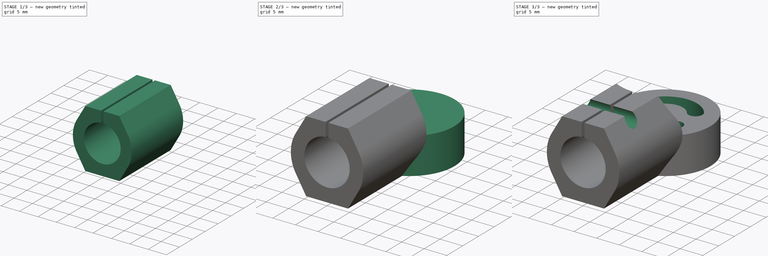
[diagram: build sequence overview — one tinted view per stage of 3, left to right]
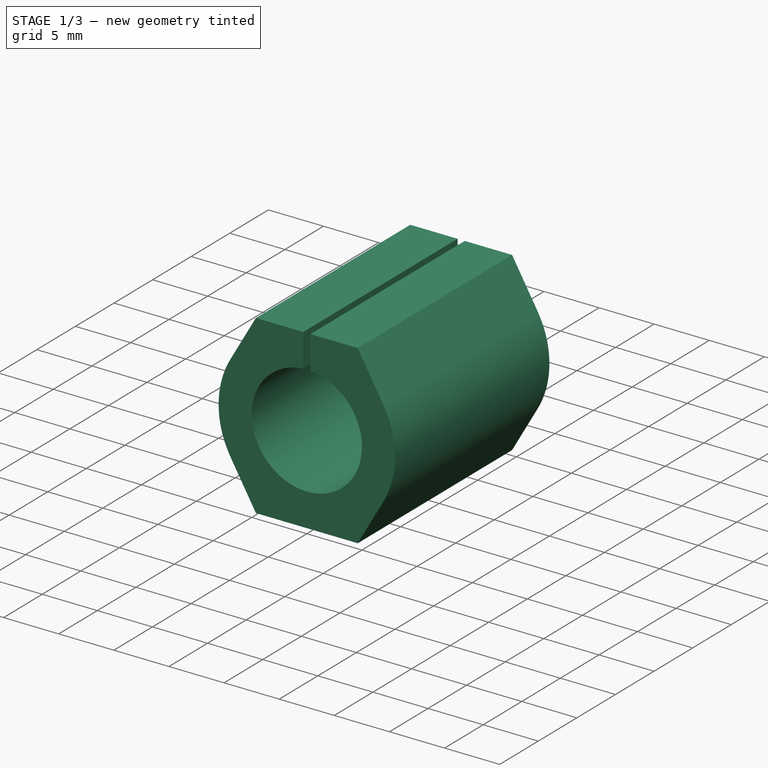
[diagram: stage 1 of 3 — iso view after this stage's code; geometry added in this stage tinted green]
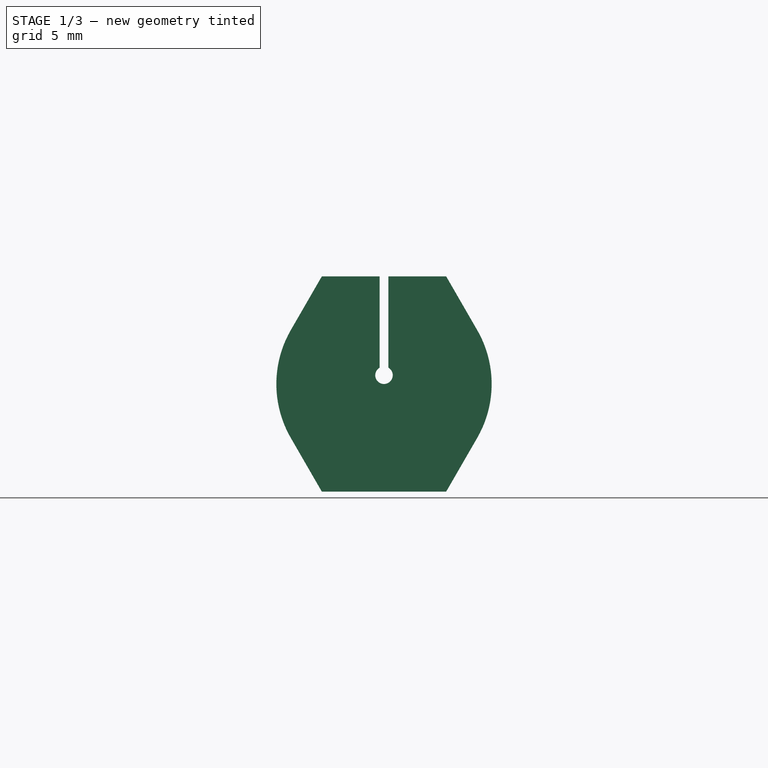
[diagram: stage 1 of 3 — front view after this stage's code; geometry added in this stage tinted green]
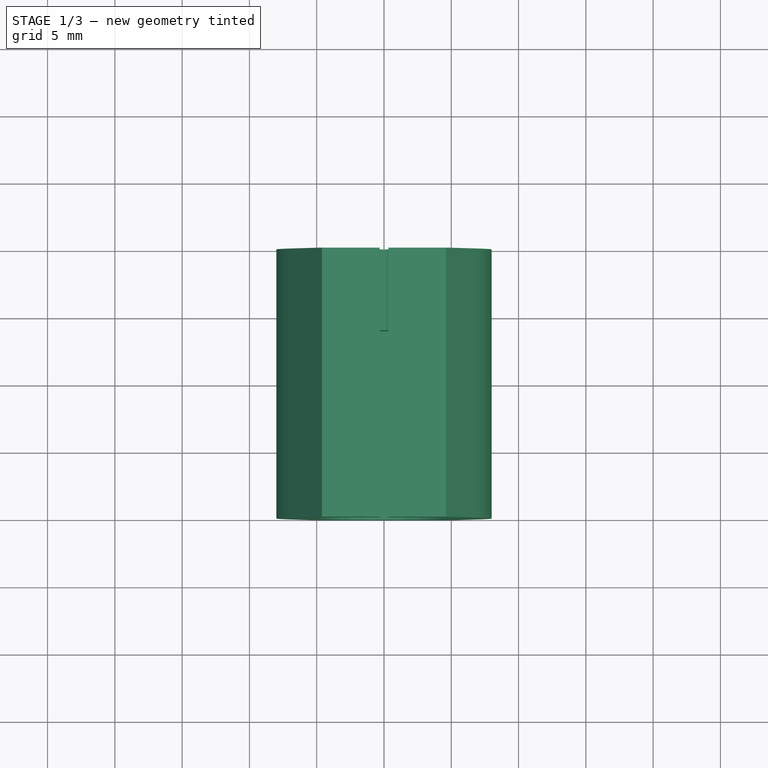
[diagram: stage 1 of 3 — top view after this stage's code; geometry added in this stage tinted green]
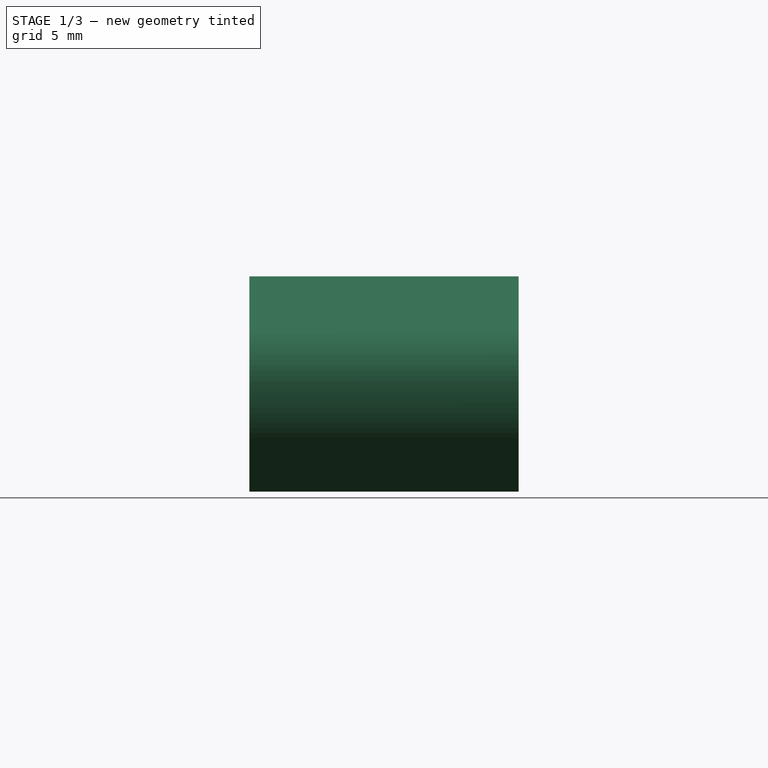
[diagram: stage 1 of 3 — right view after this stage's code; geometry added in this stage tinted green]
FCSTD DOCUMENT  (FreeCAD 0.16RUnknown)
Label: joint-i.002
License: All rights reserved
LicenseURL: http://en.wikipedia.org/wiki/All_rights_reserved
objects: Sketcher::SketchObject×7, PartDesign::Pocket×5, Part::Extrusion×2, Part::MultiFuse×1
note: 20 computed .brp shape members not serialized (recipe doc carries the construction recipe); baked Part::Feature solids carry a one-line shape summary decoded from their .brp

FEATURE [Sketcher::SketchObject] Sketch
  Placement = pos=(0,0,0) rot=(1,0,0;1.5708rad)
  sketch-geometry (16):
    g0: Circle [constr] CenterX=0 CenterY=0 CenterZ=0 NormalX=0 NormalY=0 NormalZ=1 Radius=5
    g1: LineSegment [constr] StartX=5 StartY=0 StartZ=0 EndX=8 EndY=0 EndZ=0
    g2: LineSegment StartX=-4.6188 StartY=8 StartZ=0 EndX=4.61881 EndY=8 EndZ=0
    g3: LineSegment StartX=-4.61881 StartY=-8 StartZ=0 EndX=4.6188 EndY=-8 EndZ=0
    g4: LineSegment StartX=-6.92821 StartY=-3.99999 StartZ=0 EndX=-4.61881 EndY=-8 EndZ=0
    g5: LineSegment StartX=4.6188 StartY=-8 StartZ=0 EndX=6.9282 EndY=-4 EndZ=0
    g6: LineSegment StartX=-4.6188 StartY=8 StartZ=0 EndX=-6.9282 EndY=4 EndZ=0
    g7: LineSegment StartX=4.61881 StartY=8 StartZ=0 EndX=6.92821 EndY=3.99999 EndZ=0
    g8: LineSegment [constr] StartX=0 StartY=0 StartZ=0 EndX=4.6188 EndY=-8 EndZ=0
    g9: LineSegment [constr] StartX=-4.61881 StartY=-8 StartZ=0 EndX=0 EndY=0 EndZ=0
    g10: ArcOfCircle CenterX=0 CenterY=0 CenterZ=0 NormalX=0 NormalY=0 NormalZ=1 Radius=8 StartAngle=2.61799 EndAngle=3.66519
    g11: ArcOfCircle CenterX=0 CenterY=0 CenterZ=0 NormalX=0 NormalY=0 NormalZ=1 Radius=8 StartAngle=5.75959 EndAngle=6.80678
    g12: ArcOfCircle [constr] CenterX=0 CenterY=0 CenterZ=0 NormalX=0 NormalY=0 NormalZ=1 Radius=8 StartAngle=0.523598 EndAngle=2.61799
    g13: ArcOfCircle [constr] CenterX=0 CenterY=0 CenterZ=0 NormalX=0 NormalY=0 NormalZ=1 Radius=8 StartAngle=3.66519 EndAngle=5.75959
    g14: LineSegment [constr] StartX=-4.6188 StartY=8 StartZ=0 EndX=0 EndY=0 EndZ=0
    g15: LineSegment [constr] StartX=0 StartY=0 StartZ=0 EndX=4.61881 EndY=8 EndZ=0
  constraints (43):
    c: Coincident(g0,g-1)
    c: Radius(g0) = 5
    c: Horizontal(g1)
    c: PointOnObject(g1,g0)
    c: PointOnObject(g1,g-1)
    c: DistanceX(g1,g1) = 3
    c: Horizontal(g2)
    c: Horizontal(g3)
    c: Coincident(g2,g6)
    c: Coincident(g2,g7)
    c: Coincident(g3,g4)
    c: Coincident(g3,g5)
    c: Coincident(g3,g8)
    c: Coincident(g3,g9)
    c: Coincident(g0,g9)
    c: Angle(g-1,g5) = 1.0472
    c: Tangent(g3,g13)
    c: Tangent(g6,g10)
    c: Tangent(g4,g10)
    c: Tangent(g7,g11)
    c: PointOnObject(g1,g11)
    c: Coincident(g5,g11)
    c: Coincident(g5,g13)
    c: Coincident(g4,g10)
    c: Coincident(g4,g13)
    c: Coincident(g6,g10)
    c: Coincident(g6,g12)
    c: Coincident(g7,g11)
    c: Coincident(g7,g12)
    c: Coincident(g0,g10)
    c: Coincident(g0,g11)
    c: Coincident(g0,g13)
    c: Tangent(g5,g11)
    c: Coincident(g0,g8)
    c: Coincident(g0,g12)
    c: Tangent(g2,g12)
    c: Equal(g6,g7)
    c: Coincident(g14,g15)
    c: Coincident(g2,g15)
    c: Coincident(g2,g14)
    c: Coincident(g0,g14)
    c: Parallel(g14,g8)
    c: Parallel(g9,g15)
FEATURE [Part::Extrusion] Extrude
  Base = -> Sketch
  Dir = (0,20,0)
  Solid = true
FEATURE [Sketcher::SketchObject] Sketch001
  ExternalGeometry = -> [Extrude]
  Placement = pos=(0,0,0) rot=(1,0,0;1.5708rad)
  Support = -> Extrude [Face9]
  sketch-geometry (2):
    g0: Circle CenterX=0 CenterY=0 CenterZ=0 NormalX=0 NormalY=0 NormalZ=1 Radius=5
    g1: LineSegment [constr] StartX=5 StartY=0 StartZ=0 EndX=8 EndY=0 EndZ=0
  constraints (6):
    c: Coincident(g0,g-1)
    c: Horizontal(g1)
    c: PointOnObject(g1,g-3)
    c: PointOnObject(g1,g0)
    c: PointOnObject(g1,g-1)
    c: DistanceX(g1,g1) = 3
FEATURE [PartDesign::Pocket] Pocket
  Length = 14
  Sketch = -> Sketch001
  Type = 0
FEATURE [Sketcher::SketchObject] Sketch002
  ExternalGeometry = -> [Pocket]
  Placement = pos=(0,20,0) rot=(0,0.707107,0.707107;3.14159rad)
  Support = -> Pocket [Face5]
  sketch-geometry (8):
    g0: ArcOfCircle CenterX=0 CenterY=0.65 CenterZ=0 NormalX=0 NormalY=0 NormalZ=1 Radius=0.65 StartAngle=2.0944 EndAngle=7.33038
    g1: LineSegment StartX=-0.325 StartY=8 StartZ=0 EndX=-0.325 EndY=1.21292 EndZ=0
    g2: LineSegment StartX=0.325 StartY=8 StartZ=0 EndX=0.325 EndY=1.21292 EndZ=0
    g3: LineSegment [constr] StartX=-0.325 StartY=1.21292 StartZ=0 EndX=0 EndY=0.65 EndZ=0
    g4: LineSegment [constr] StartX=0 StartY=0.65 StartZ=0 EndX=0.325 EndY=1.21292 EndZ=0
    g5: LineSegment [constr] StartX=-0.325 StartY=1.21292 StartZ=0 EndX=0.325 EndY=1.21292 EndZ=0
    g6: LineSegment StartX=-0.325 StartY=8 StartZ=0 EndX=0.325 EndY=8 EndZ=0
    g7: LineSegment [constr] StartX=0 StartY=0.65 StartZ=0 EndX=0 EndY=0 EndZ=0
  constraints (22):
    c: Vertical(g1)
    c: Vertical(g2)
    c: PointOnObject(g2,g-3)
    c: PointOnObject(g1,g-3)
    c: Coincident(g0,g2)
    c: Coincident(g0,g1)
    c: Coincident(g3,g4)
    c: Coincident(g0,g3)
    c: Coincident(g0,g4)
    c: Coincident(g0,g3)
    c: Horizontal(g5)
    c: Coincident(g0,g5)
    c: Coincident(g0,g5)
    c: Angle(g4,g3) = 1.0472
    c: Horizontal(g6)
    c: DistanceX(g6,g6) = 0.65
    c: Coincident(g2,g6)
    c: Coincident(g1,g6)
    c: Vertical(g7)
    c: Coincident(g0,g7)
    c: PointOnObject(g7,g0)
    c: Coincident(g7,g-1)
FEATURE [PartDesign::Pocket] Pocket001
  Length = 5
  Sketch = -> Sketch002
  Type = 1
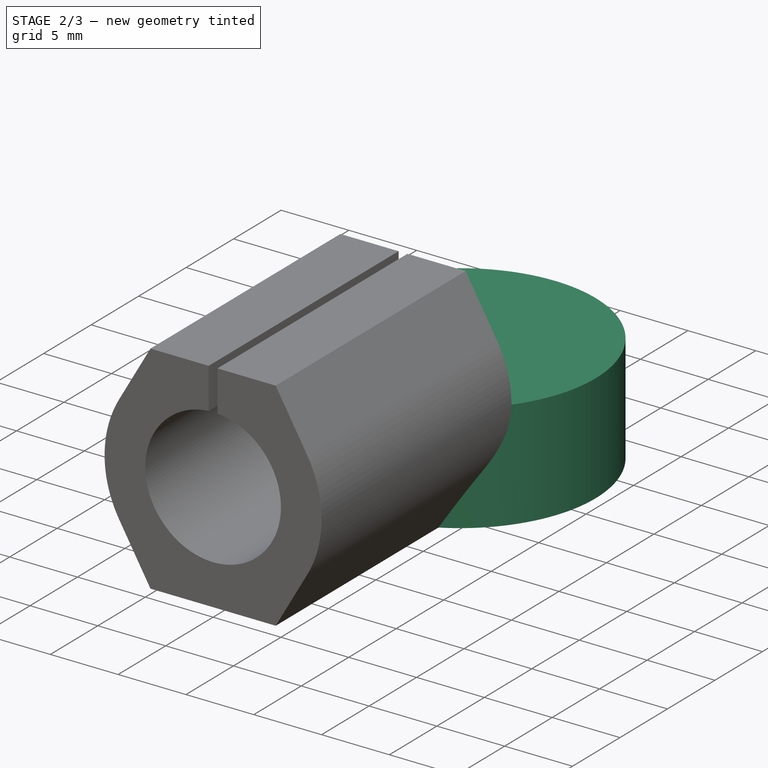
[diagram: stage 2 of 3 — iso view after this stage's code; geometry added in this stage tinted green]
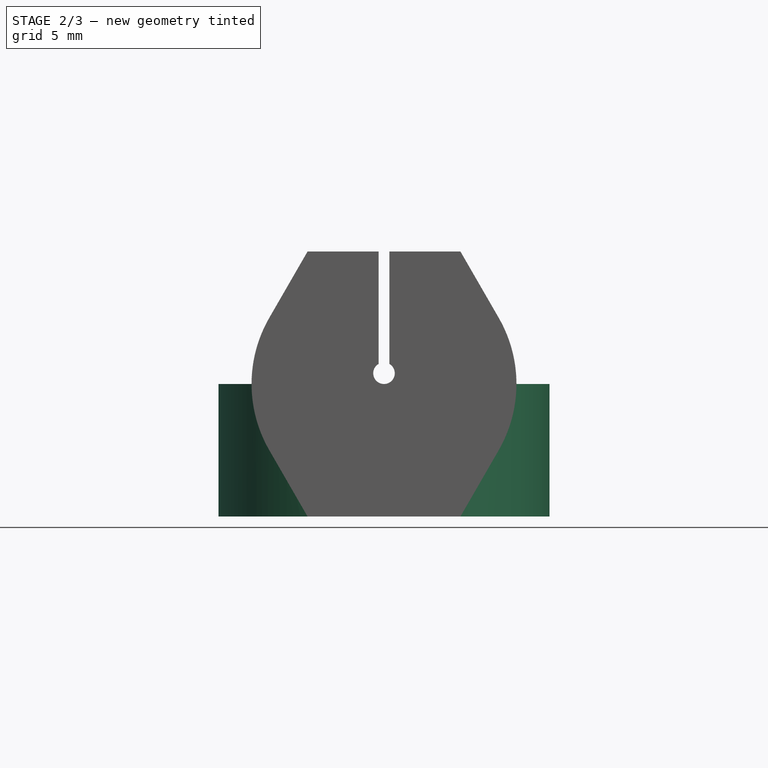
[diagram: stage 2 of 3 — front view after this stage's code; geometry added in this stage tinted green]
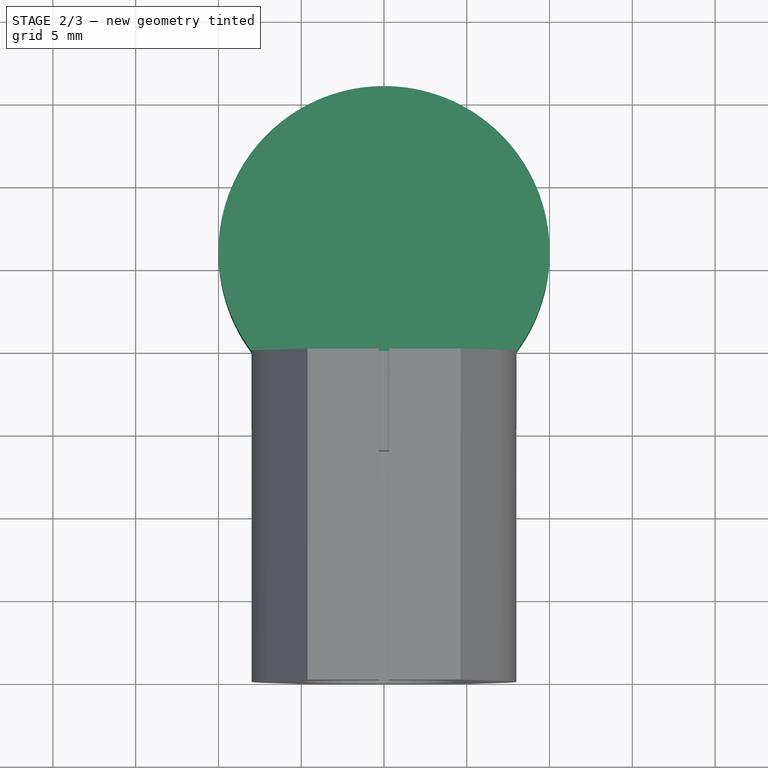
[diagram: stage 2 of 3 — top view after this stage's code; geometry added in this stage tinted green]
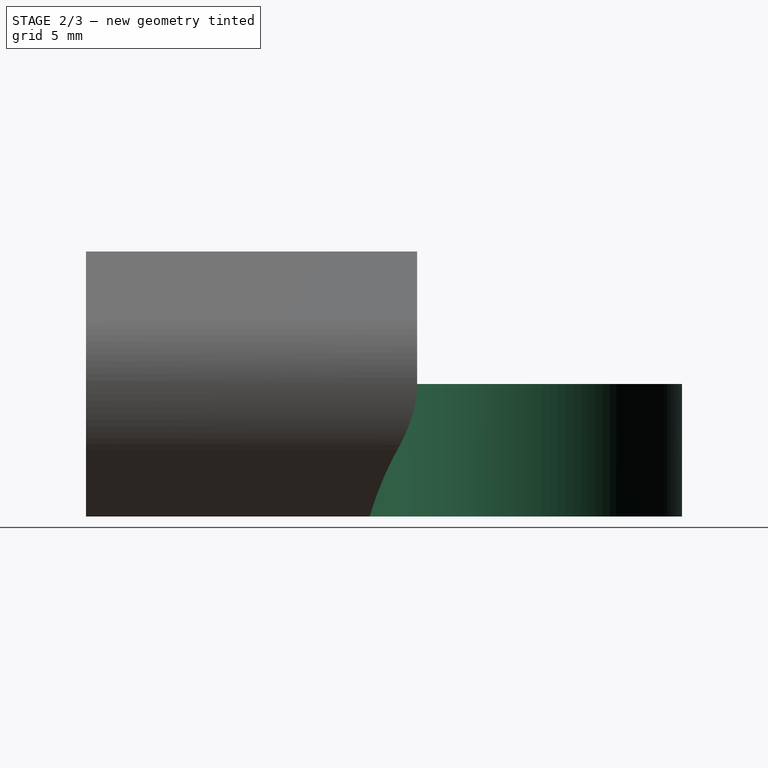
[diagram: stage 2 of 3 — right view after this stage's code; geometry added in this stage tinted green]
FEATURE [Sketcher::SketchObject] Sketch003
  ExternalGeometry = -> [Pocket001]
  Placement = pos=(0,0,-8) rot=(1,0,0;3.14159rad)
  Support = -> Pocket001 [Face8]
  sketch-geometry (3):
    g0: Circle CenterX=0 CenterY=-26 CenterZ=0 NormalX=0 NormalY=0 NormalZ=1 Radius=10
    g1: LineSegment [constr] StartX=-8 StartY=-20 StartZ=0 EndX=0 EndY=-20 EndZ=0
    g2: LineSegment [constr] StartX=0 StartY=-20 StartZ=0 EndX=8 EndY=-20 EndZ=0
  constraints (10):
    c: PointOnObject(g0,g-2)
    c: Horizontal(g1)
    c: Horizontal(g2)
    c: PointOnObject(g1,g0)
    c: PointOnObject(g2,g0)
    c: Radius(g0) = 10
    c: Coincident(g1,g2)
    c: Equal(g2,g1)
    c: PointOnObject(g1,g-3)
    c: DistanceX(g1,g2) = 16
FEATURE [Part::Extrusion] Extrude001
  Base = -> Sketch003
  Dir = (0,0,8)
  Solid = true
FEATURE [Part::MultiFuse] Fusion
  Shapes = -> [Extrude001,Pocket001]
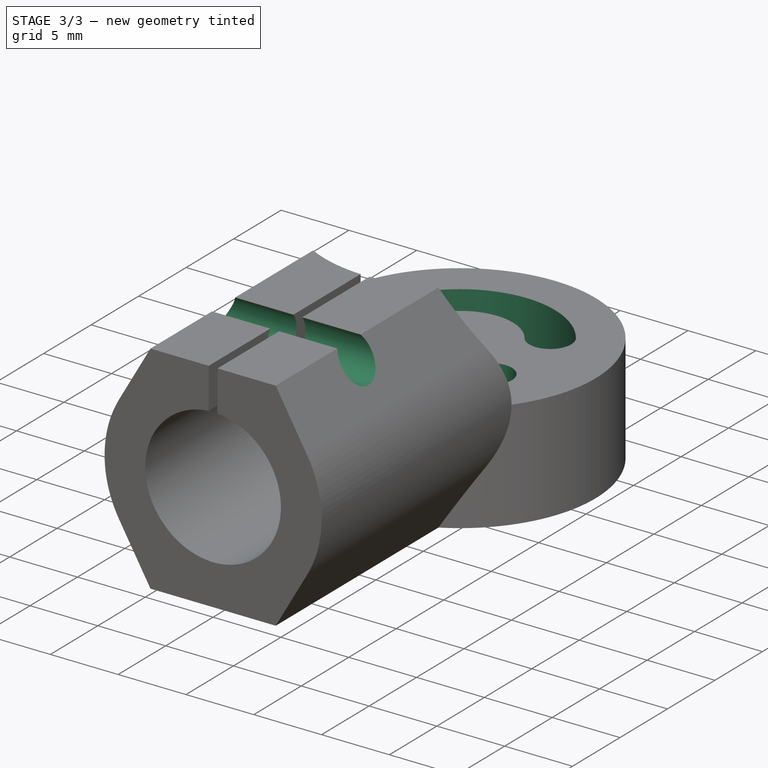
[diagram: stage 3 of 3 — iso view after this stage's code; geometry added in this stage tinted green]
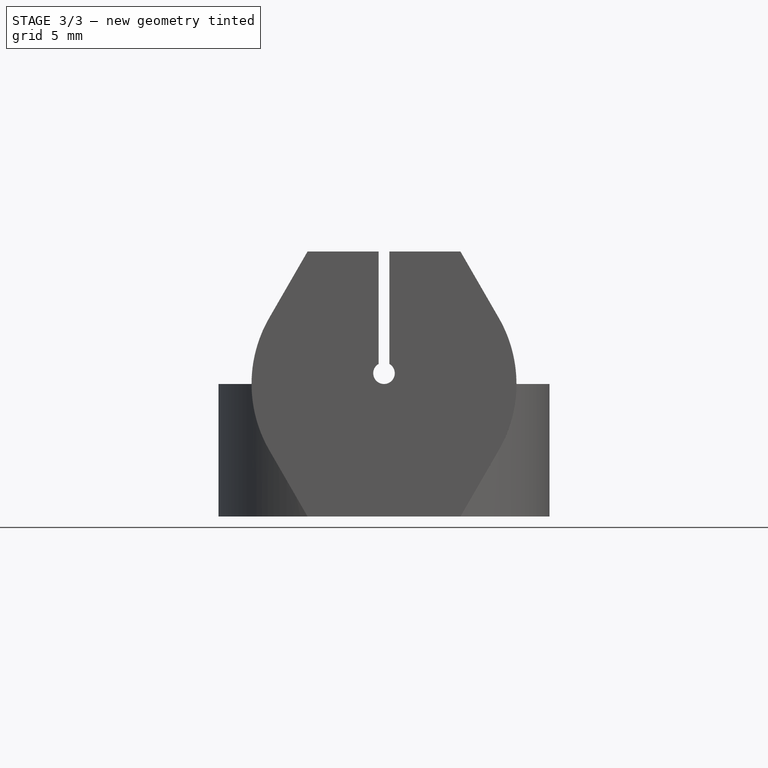
[diagram: stage 3 of 3 — front view after this stage's code; geometry added in this stage tinted green]
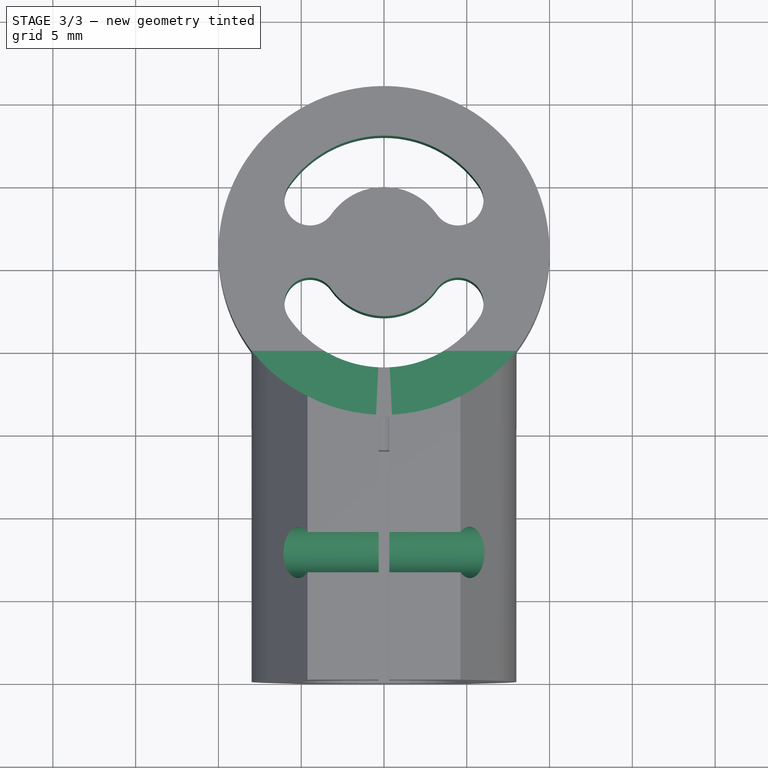
[diagram: stage 3 of 3 — top view after this stage's code; geometry added in this stage tinted green]
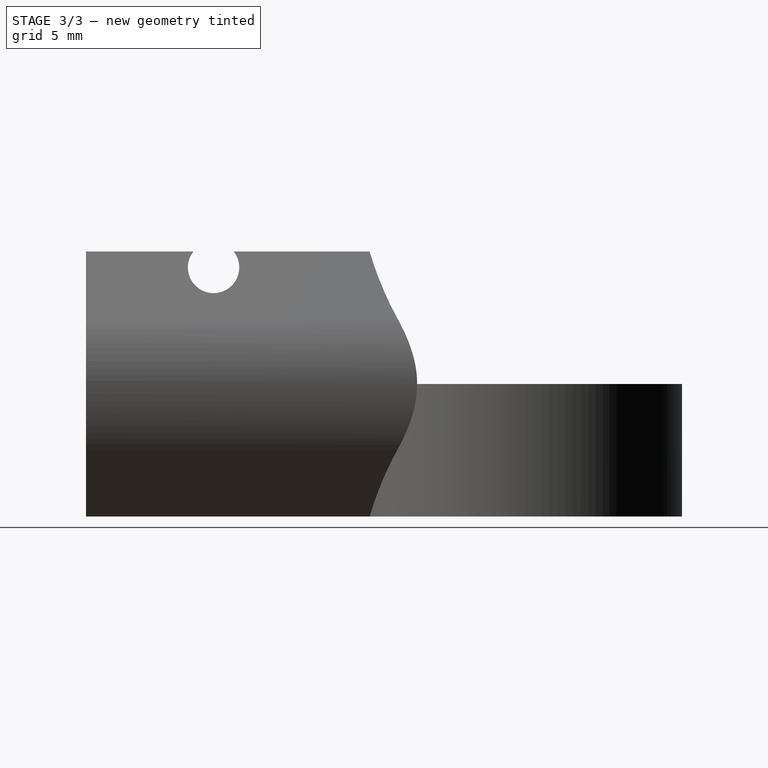
[diagram: stage 3 of 3 — right view after this stage's code; geometry added in this stage tinted green]
FEATURE [Sketcher::SketchObject] Sketch004
  ExternalGeometry = -> [Fusion]
  Support = -> Fusion [Face17]
  sketch-geometry (1):
    g0: Circle CenterX=0 CenterY=26 CenterZ=0 NormalX=0 NormalY=0 NormalZ=1 Radius=10
  constraints (2):
    c: Coincident(g0,g-3)
    c: Equal(g0,g-3)
FEATURE [PartDesign::Pocket] Pocket002
  Length = 5
  Reversed = true
  Sketch = -> Sketch004
  Type = 1
FEATURE [Sketcher::SketchObject] Sketch005
  ExternalGeometry = -> [Pocket002]
  Support = -> Pocket002 [Face23]
  sketch-geometry (22):
    g0: ArcOfCircle [constr] CenterX=0 CenterY=26 CenterZ=0 NormalX=0 NormalY=0 NormalZ=1 Radius=3.9 StartAngle=2.53073 EndAngle=3.75246
    g1: ArcOfCircle [constr] CenterX=0 CenterY=26 CenterZ=0 NormalX=0 NormalY=0 NormalZ=1 Radius=7 StartAngle=2.53073 EndAngle=3.75246
    g2: ArcOfCircle [constr] CenterX=0 CenterY=26 CenterZ=0 NormalX=0 NormalY=0 NormalZ=1 Radius=3.9 StartAngle=5.67232 EndAngle=6.89405
    g3: ArcOfCircle [constr] CenterX=0 CenterY=26 CenterZ=0 NormalX=0 NormalY=0 NormalZ=1 Radius=7 StartAngle=5.67232 EndAngle=6.89405
    g4: ArcOfCircle CenterX=0 CenterY=26 CenterZ=0 NormalX=0 NormalY=0 NormalZ=1 Radius=3.9 StartAngle=0.610865 EndAngle=2.53073
    g5: ArcOfCircle CenterX=0 CenterY=26 CenterZ=0 NormalX=0 NormalY=0 NormalZ=1 Radius=7 StartAngle=0.610865 EndAngle=2.53073
    g6: ArcOfCircle CenterX=0 CenterY=26 CenterZ=0 NormalX=0 NormalY=0 NormalZ=1 Radius=3.9 StartAngle=3.75246 EndAngle=5.67232
    g7: ArcOfCircle CenterX=0 CenterY=26 CenterZ=0 NormalX=0 NormalY=0 NormalZ=1 Radius=7 StartAngle=3.75246 EndAngle=5.67232
    g8: LineSegment [constr] StartX=8.19152 StartY=31.7358 StartZ=0 EndX=5.73406 EndY=30.015 EndZ=0
    g9: LineSegment [constr] StartX=5.73406 StartY=30.015 StartZ=0 EndX=3.19469 EndY=28.2369 EndZ=0
    g10: LineSegment [constr] StartX=3.19469 StartY=28.2369 StartZ=0 EndX=0 EndY=26 EndZ=0
    g11: LineSegment [constr] StartX=0 StartY=26 StartZ=0 EndX=-3.19469 EndY=23.7631 EndZ=0
    g12: LineSegment [constr] StartX=-3.19469 StartY=23.7631 StartZ=0 EndX=-5.73406 EndY=21.985 EndZ=0
    g13: LineSegment [constr] StartX=-5.73406 StartY=30.015 StartZ=0 EndX=-3.19469 EndY=28.2369 EndZ=0
    g14: LineSegment [constr] StartX=-3.19469 StartY=28.2369 StartZ=0 EndX=0 EndY=26 EndZ=0
    g15: LineSegment [constr] StartX=0 StartY=26 StartZ=0 EndX=3.19469 EndY=23.7631 EndZ=0
    g16: LineSegment [constr] StartX=3.19469 StartY=23.7631 StartZ=0 EndX=5.73406 EndY=21.985 EndZ=0
    g17: LineSegment [constr] StartX=-3.19469 StartY=28.2369 StartZ=0 EndX=3.19469 EndY=28.2369 EndZ=0
    g18: ArcOfCircle CenterX=-4.46438 CenterY=29.126 CenterZ=0 NormalX=0 NormalY=0 NormalZ=1 Radius=1.55 StartAngle=2.53073 EndAngle=5.67232
    g19: ArcOfCircle CenterX=-4.46438 CenterY=22.874 CenterZ=0 NormalX=0 NormalY=0 NormalZ=1 Radius=1.55 StartAngle=0.610865 EndAngle=3.75246
    g20: ArcOfCircle CenterX=4.46438 CenterY=29.126 CenterZ=0 NormalX=0 NormalY=0 NormalZ=1 Radius=1.55 StartAngle=3.75246 EndAngle=6.89405
    g21: ArcOfCircle CenterX=4.46438 CenterY=22.874 CenterZ=0 NormalX=0 NormalY=0 NormalZ=1 Radius=1.55 StartAngle=5.67232 EndAngle=8.81391
  constraints (59):
    c: Coincident(g0,g1)
    c: Coincident(g0,g2)
    c: Coincident(g0,g3)
    c: Coincident(g0,g4)
    c: Coincident(g0,g5)
    c: Coincident(g0,g6)
    c: Coincident(g0,g7)
    c: Coincident(g0,g-3)
    c: Coincident(g1,g5)
    c: Coincident(g0,g4)
    c: Coincident(g0,g6)
    c: Coincident(g1,g7)
    c: Coincident(g2,g4)
    c: Coincident(g2,g6)
    c: Coincident(g3,g7)
    c: Coincident(g3,g5)
    c: Coincident(g8,g9)
    c: Coincident(g9,g10)
    c: Coincident(g10,g11)
    c: Coincident(g11,g12)
    c: Coincident(g13,g14)
    c: Coincident(g14,g15)
    c: Coincident(g15,g16)
    c: Coincident(g0,g10)
    c: Coincident(g0,g14)
    c: Coincident(g3,g8)
    c: Coincident(g2,g9)
    c: Coincident(g0,g13)
    c: Coincident(g1,g13)
    c: Coincident(g0,g11)
    c: Coincident(g1,g12)
    c: Coincident(g2,g15)
    c: Coincident(g3,g16)
    c: PointOnObject(g8,g-3)
    c: Parallel(g12,g11)
    c: Parallel(g11,g10)
    c: Parallel(g10,g9)
    c: Parallel(g9,g8)
    c: Parallel(g13,g14)
    c: Parallel(g14,g15)
    c: Parallel(g15,g16)
    c: Horizontal(g17)
    c: Coincident(g2,g17)
    c: Coincident(g0,g17)
    c: Distance(g8) = 3
    c: Distance(g9) = 3.1
    c: Angle(g14,g11) = 1.22173
    c: Coincident(g3,g20)
    c: Coincident(g2,g20)
    c: Coincident(g0,g18)
    c: Coincident(g1,g18)
    c: Coincident(g0,g19)
    c: Coincident(g1,g19)
    c: PointOnObject(g20,g9)
    c: PointOnObject(g18,g13)
    c: PointOnObject(g19,g12)
    c: Coincident(g3,g21)
    c: Coincident(g2,g21)
    c: PointOnObject(g21,g16)
FEATURE [PartDesign::Pocket] Pocket003
  Length = 5
  Sketch = -> Sketch005
  Type = 1
FEATURE [Sketcher::SketchObject] Sketch006
  ExternalGeometry = -> [Pocket003]
  Placement = pos=(-0.325,0,0) rot=(0.57735,0.57735,0.57735;2.0944rad)
  Support = -> Pocket003 [Face15]
  sketch-geometry (8):
    g0: LineSegment [constr] StartX=0 StartY=8 StartZ=0 EndX=7.70394 EndY=6.34334 EndZ=0
    g1: LineSegment [constr] StartX=7.70394 StartY=6.34334 StartZ=0 EndX=14 EndY=4.98943 EndZ=0
    g2: LineSegment [constr] StartX=17.1306 StartY=8 StartZ=0 EndX=7.70394 EndY=6.34334 EndZ=0
    g3: LineSegment [constr] StartX=7.70394 StartY=6.34334 StartZ=0 EndX=0 EndY=4.98943 EndZ=0
    g4: Circle CenterX=7.70394 CenterY=7.03943 CenterZ=0 NormalX=0 NormalY=0 NormalZ=1 Radius=1.55
    g5: LineSegment [constr] StartX=7.70394 StartY=6.34334 StartZ=0 EndX=7.70394 EndY=5.48943 EndZ=0
    g6: LineSegment [constr] StartX=7.70394 StartY=5.48943 StartZ=0 EndX=7.70394 EndY=4.98943 EndZ=0
    g7: LineSegment [constr] StartX=7.70394 StartY=7.03943 StartZ=0 EndX=7.70394 EndY=6.34334 EndZ=0
  constraints (20):
    c: Coincident(g0,g1)
    c: Coincident(g2,g3)
    c: Coincident(g3,g-3)
    c: Coincident(g0,g-4)
    c: Coincident(g0,g2)
    c: Coincident(g1,g-3)
    c: Coincident(g2,g-4)
    c: Parallel(g0,g1)
    c: Parallel(g3,g2)
    c: Radius(g4) = 1.55
    c: Vertical(g5)
    c: Coincident(g5,g6)
    c: Vertical(g6)
    c: Coincident(g0,g5)
    c: PointOnObject(g6,g-3)
    c: DistanceY(g6,g6) = 0.5
    c: Vertical(g7)
    c: Coincident(g4,g7)
    c: Coincident(g0,g7)
    c: PointOnObject(g5,g4)
FEATURE [PartDesign::Pocket] Pocket004
  Length = 5
  Midplane = true
  Sketch = -> Sketch006
  Type = 1
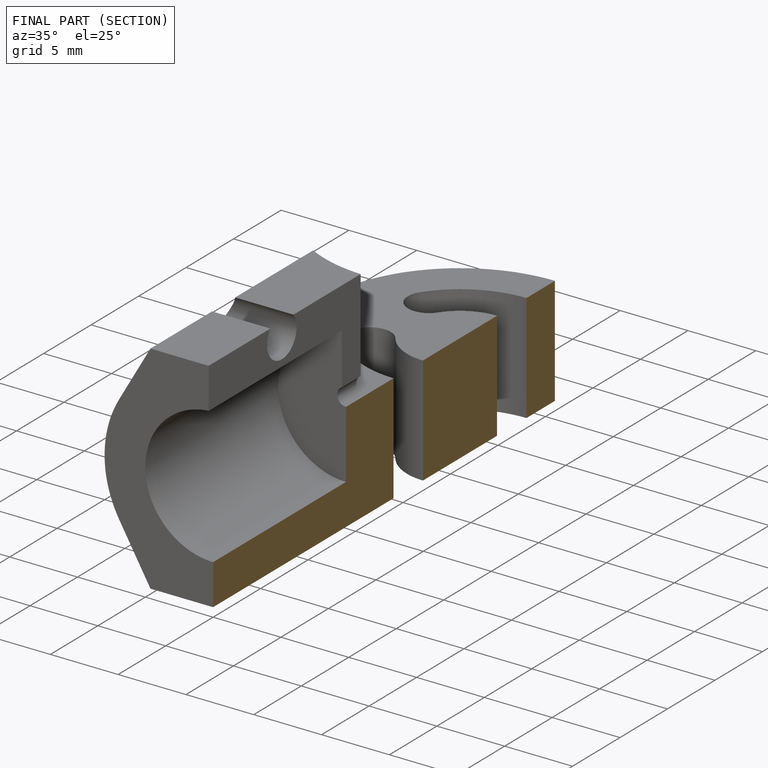
[diagram: finished part — half-section view (interior)]
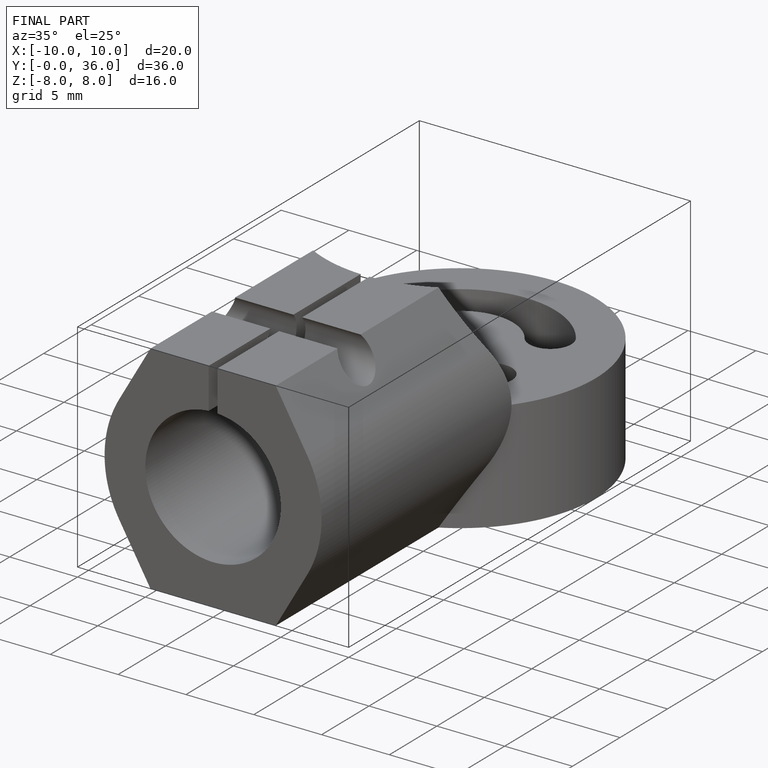
[diagram: finished part — iso view with bounding-box wireframe]
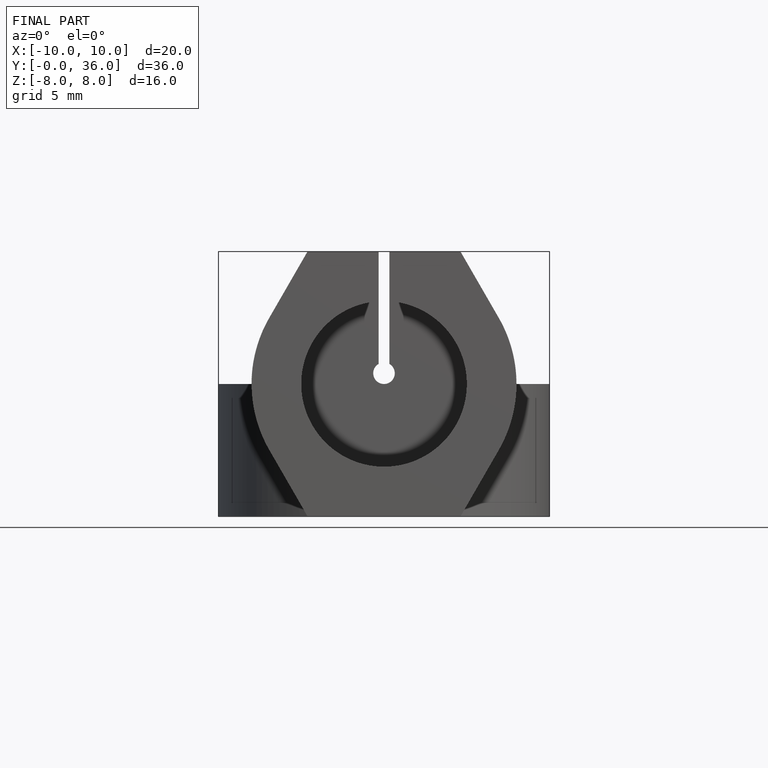
[diagram: finished part — front view with bounding-box wireframe]
